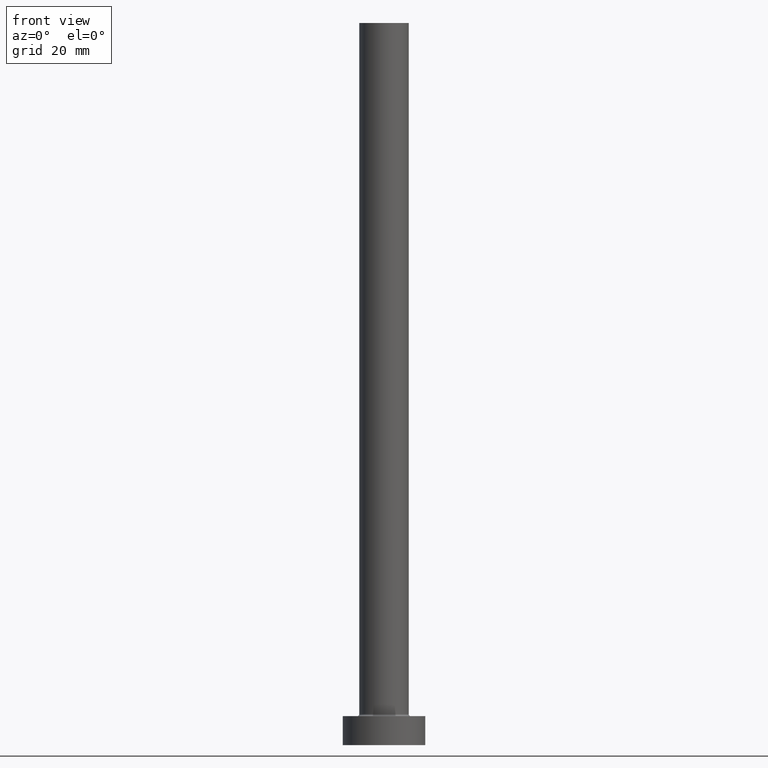
[diagram: clean part render]
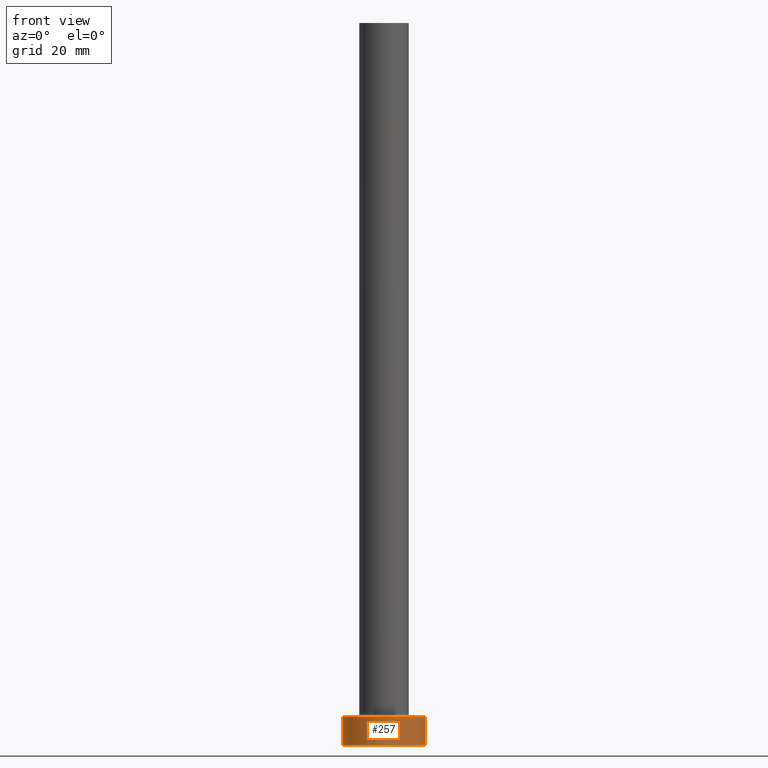
[diagram: same view with one face highlighted and labeled with its STEP entity id]
A machine part, front view. The second image highlights one B-rep face of the part: STEP entity #257.
In plain terms, the highlighted cylindrical surface (partial cylindrical patch) has radius 10 mm, axis along (-0, -0, -1).
Its self-contained STEP definition (entity closure, byte-faithful):
#17 = CARTESIAN_POINT ( 'NONE',  ( 10.00000000000000000, 1.224646799147353256E-15, 7.000000000000000000 ) ) ;
#59 = ORIENTED_EDGE ( 'NONE', *, *, #426, .F. ) ;
#86 = ORIENTED_EDGE ( 'NONE', *, *, #92, .T. ) ;
#92 = EDGE_CURVE ( 'NONE', #336, #194, #326, .T. ) ;
#98 = CARTESIAN_POINT ( 'NONE',  ( 10.00000000000000000, 1.224646799147353256E-15, 7.000000000000000000 ) ) ;
#101 = LINE ( 'NONE', #98, #447 ) ;
#102 = CIRCLE ( 'NONE', #451, 10.00000000000000000 ) ;
#114 = EDGE_LOOP ( 'NONE', ( #59, #199, #123, #86 ) ) ;
#119 = CARTESIAN_POINT ( 'NONE',  ( 0.000000000000000000, 0.000000000000000000, 7.000000000000000000 ) ) ;
#121 = CARTESIAN_POINT ( 'NONE',  ( -10.00000000000000000, 0.000000000000000000, 7.000000000000000000 ) ) ;
#123 = ORIENTED_EDGE ( 'NONE', *, *, #246, .T. ) ;
#140 = VERTEX_POINT ( 'NONE', #17 ) ;
#161 = CARTESIAN_POINT ( 'NONE',  ( -10.00000000000000000, 0.000000000000000000, 7.000000000000000000 ) ) ;
#171 = VECTOR ( 'NONE', #386, 1000.000000000000000 ) ;
#181 = CYLINDRICAL_SURFACE ( 'NONE', #220, 10.00000000000000000 ) ;
#194 = VERTEX_POINT ( 'NONE', #287 ) ;
#199 = ORIENTED_EDGE ( 'NONE', *, *, #404, .F. ) ;
#220 = AXIS2_PLACEMENT_3D ( 'NONE', #119, #313, #295 ) ;
#227 = DIRECTION ( 'NONE',  ( 1.000000000000000000, 0.000000000000000000, 0.000000000000000000 ) ) ;
#246 = EDGE_CURVE ( 'NONE', #372, #336, #351, .T. ) ;
#257 = ADVANCED_FACE ( 'NONE', ( #431 ), #181, .T. ) ;
#272 = CARTESIAN_POINT ( 'NONE',  ( 0.000000000000000000, 0.000000000000000000, 7.000000000000000000 ) ) ;
#276 = DIRECTION ( 'NONE',  ( 0.000000000000000000, 0.000000000000000000, 1.000000000000000000 ) ) ;
#287 = CARTESIAN_POINT ( 'NONE',  ( 10.00000000000000000, 1.224646799147353256E-15, 0.000000000000000000 ) ) ;
#289 = CARTESIAN_POINT ( 'NONE',  ( -10.00000000000000000, 0.000000000000000000, 0.000000000000000000 ) ) ;
#295 = DIRECTION ( 'NONE',  ( -1.000000000000000000, 0.000000000000000000, 0.000000000000000000 ) ) ;
#306 = DIRECTION ( 'NONE',  ( 0.000000000000000000, 0.000000000000000000, 1.000000000000000000 ) ) ;
#313 = DIRECTION ( 'NONE',  ( -0.000000000000000000, -0.000000000000000000, -1.000000000000000000 ) ) ;
#326 = CIRCLE ( 'NONE', #337, 10.00000000000000000 ) ;
#336 = VERTEX_POINT ( 'NONE', #289 ) ;
#337 = AXIS2_PLACEMENT_3D ( 'NONE', #425, #306, #396 ) ;
#351 = LINE ( 'NONE', #121, #171 ) ;
#372 = VERTEX_POINT ( 'NONE', #161 ) ;
#386 = DIRECTION ( 'NONE',  ( -0.000000000000000000, -0.000000000000000000, -1.000000000000000000 ) ) ;
#396 = DIRECTION ( 'NONE',  ( 1.000000000000000000, 0.000000000000000000, 0.000000000000000000 ) ) ;
#404 = EDGE_CURVE ( 'NONE', #372, #140, #102, .T. ) ;
#418 = DIRECTION ( 'NONE',  ( -0.000000000000000000, -0.000000000000000000, -1.000000000000000000 ) ) ;
#425 = CARTESIAN_POINT ( 'NONE',  ( 0.000000000000000000, 0.000000000000000000, 0.000000000000000000 ) ) ;
#426 = EDGE_CURVE ( 'NONE', #140, #194, #101, .T. ) ;
#431 = FACE_OUTER_BOUND ( 'NONE', #114, .T. ) ;
#447 = VECTOR ( 'NONE', #418, 1000.000000000000000 ) ;
#451 = AXIS2_PLACEMENT_3D ( 'NONE', #272, #276, #227 ) ;